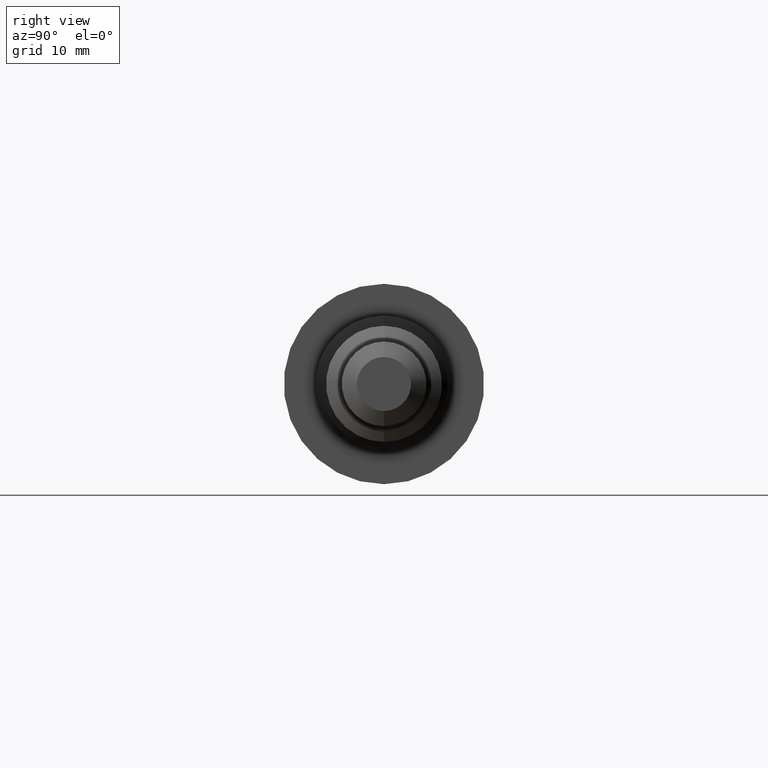
[diagram: clean part render]
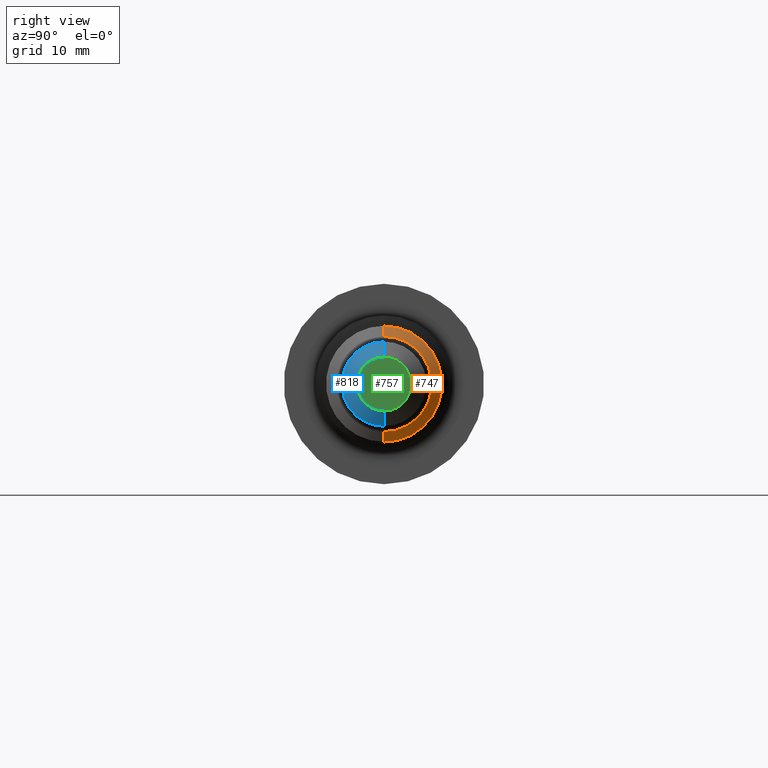
[diagram: same view with three faces highlighted in distinct colors, each labeled with its STEP entity id]
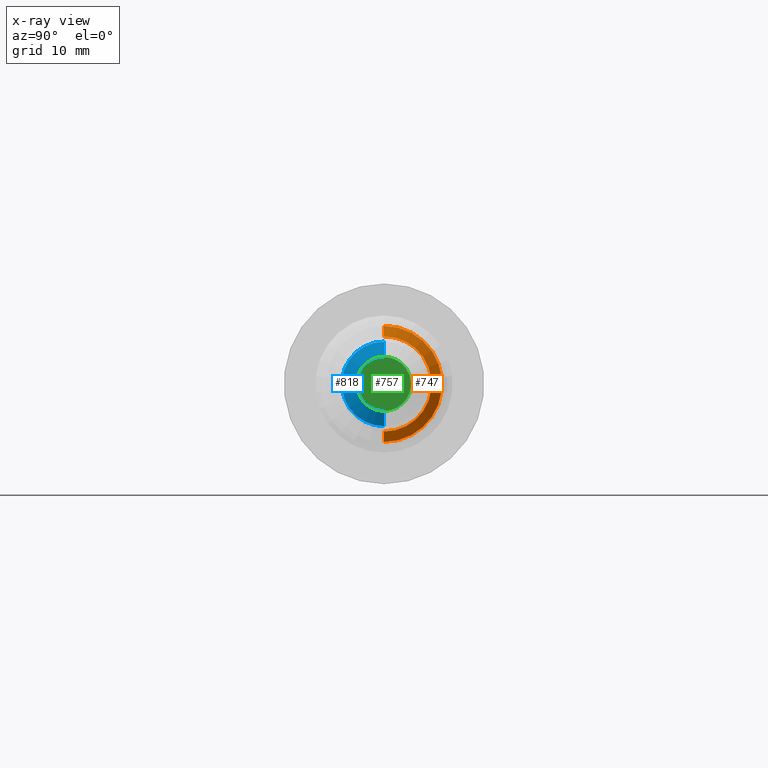
[diagram: x-ray of the same camera — body ghosted, the three highlighted faces saturated]
A machine part, right view with three faces highlighted in distinct colors.
The next image is the same camera in x-ray (body ghosted, the three faces saturated) — at least one of them is partly hidden behind the body in this view.
Their STEP definitions:

[orange] entity #747 — the highlighted conical surface has half-angle 61 deg.
#5 = LINE ( 'NONE', #744, #684 ) ;
#49 = EDGE_LOOP ( 'NONE', ( #150, #789, #694, #274 ) ) ;
#85 = FACE_OUTER_BOUND ( 'NONE', #49, .T. ) ;
#134 = DIRECTION ( 'NONE',  ( 0.0000000000000000000, 0.0000000000000000000, 1.000000000000000000 ) ) ;
#150 = ORIENTED_EDGE ( 'NONE', *, *, #334, .T. ) ;
#169 = DIRECTION ( 'NONE',  ( -1.000000000000000000, -0.0000000000000000000, -0.0000000000000000000 ) ) ;
#190 = AXIS2_PLACEMENT_3D ( 'NONE', #546, #788, #281 ) ;
#200 = CIRCLE ( 'NONE', #725, 0.2823418035447272101 ) ;
#210 = LINE ( 'NONE', #372, #537 ) ;
#263 = CARTESIAN_POINT ( 'NONE',  ( 3.512000000000000011, 0.0000000000000000000, 0.3440000000000000280 ) ) ;
#274 = ORIENTED_EDGE ( 'NONE', *, *, #555, .F. ) ;
#281 = DIRECTION ( 'NONE',  ( 0.0000000000000000000, 0.0000000000000000000, 1.000000000000000000 ) ) ;
#291 = DIRECTION ( 'NONE',  ( 0.0000000000000000000, 0.0000000000000000000, 1.000000000000000000 ) ) ;
#304 = DIRECTION ( 'NONE',  ( -0.4848096202463353377, 0.0000000000000000000, 0.8746197071393967404 ) ) ;
#334 = EDGE_CURVE ( 'NONE', #637, #483, #200, .T. ) ;
#339 = CARTESIAN_POINT ( 'NONE',  ( 3.546177696391410894, 3.835237424416152183E-17, -0.2823418035447272101 ) ) ;
#372 = CARTESIAN_POINT ( 'NONE',  ( 3.546177696391410894, 3.457689859765410033E-17, -0.2823418035447272101 ) ) ;
#422 = VERTEX_POINT ( 'NONE', #263 ) ;
#430 = DIRECTION ( 'NONE',  ( -1.000000000000000000, -0.0000000000000000000, -0.0000000000000000000 ) ) ;
#448 = CARTESIAN_POINT ( 'NONE',  ( 3.546177696391410894, 0.0000000000000000000, 0.0000000000000000000 ) ) ;
#483 = VERTEX_POINT ( 'NONE', #339 ) ;
#535 = EDGE_CURVE ( 'NONE', #483, #707, #210, .T. ) ;
#537 = VECTOR ( 'NONE', #806, 39.37007874015748143 ) ;
#546 = CARTESIAN_POINT ( 'NONE',  ( 3.546177696391410894, 0.0000000000000000000, 0.0000000000000000000 ) ) ;
#555 = EDGE_CURVE ( 'NONE', #637, #422, #5, .T. ) ;
#618 = AXIS2_PLACEMENT_3D ( 'NONE', #799, #430, #291 ) ;
#633 = EDGE_CURVE ( 'NONE', #422, #707, #781, .T. ) ;
#636 = CONICAL_SURFACE ( 'NONE', #190, 0.2823418035447272101, 1.064650843716542949 ) ;
#637 = VERTEX_POINT ( 'NONE', #741 ) ;
#684 = VECTOR ( 'NONE', #304, 39.37007874015748143 ) ;
#694 = ORIENTED_EDGE ( 'NONE', *, *, #633, .F. ) ;
#707 = VERTEX_POINT ( 'NONE', #731 ) ;
#725 = AXIS2_PLACEMENT_3D ( 'NONE', #448, #169, #134 ) ;
#731 = CARTESIAN_POINT ( 'NONE',  ( 3.512000000000000011, 4.212784989066894949E-17, -0.3440000000000000280 ) ) ;
#741 = CARTESIAN_POINT ( 'NONE',  ( 3.546177696391410894, 0.0000000000000000000, 0.2823418035447272101 ) ) ;
#744 = CARTESIAN_POINT ( 'NONE',  ( 3.546177696391410894, 0.0000000000000000000, 0.2823418035447272101 ) ) ;
#747 = ADVANCED_FACE ( 'NONE', ( #85 ), #636, .T. ) ;
#781 = CIRCLE ( 'NONE', #618, 0.3440000000000000280 ) ;
#788 = DIRECTION ( 'NONE',  ( -1.000000000000000000, -0.0000000000000000000, -0.0000000000000000000 ) ) ;
#789 = ORIENTED_EDGE ( 'NONE', *, *, #535, .T. ) ;
#799 = CARTESIAN_POINT ( 'NONE',  ( 3.512000000000000011, 0.0000000000000000000, 0.0000000000000000000 ) ) ;
#806 = DIRECTION ( 'NONE',  ( -0.4848096202463353377, 1.071100224819457718E-16, -0.8746197071393967404 ) ) ;

[blue] entity #818 — the highlighted conical surface has half-angle 61 deg.
#7 = AXIS2_PLACEMENT_3D ( 'NONE', #216, #18, #149 ) ;
#13 = VERTEX_POINT ( 'NONE', #341 ) ;
#14 = CARTESIAN_POINT ( 'NONE',  ( 4.000000000000000000, 0.0000000000000000000, 0.0000000000000000000 ) ) ;
#18 = DIRECTION ( 'NONE',  ( -1.000000000000000000, -0.0000000000000000000, -0.0000000000000000000 ) ) ;
#33 = VECTOR ( 'NONE', #486, 39.37007874015748143 ) ;
#44 = ORIENTED_EDGE ( 'NONE', *, *, #722, .T. ) ;
#74 = CONICAL_SURFACE ( 'NONE', #542, 0.1601976122364287547, 1.064650843716543616 ) ;
#87 = CARTESIAN_POINT ( 'NONE',  ( 4.000000000000000000, 0.0000000000000000000, 0.0000000000000000000 ) ) ;
#116 = ORIENTED_EDGE ( 'NONE', *, *, #715, .F. ) ;
#128 = CARTESIAN_POINT ( 'NONE',  ( 4.000000000000000000, 1.961854930563913181E-17, -0.1601976122364287547 ) ) ;
#149 = DIRECTION ( 'NONE',  ( 0.0000000000000000000, 0.0000000000000000000, 1.000000000000000000 ) ) ;
#157 = DIRECTION ( 'NONE',  ( 0.0000000000000000000, 0.0000000000000000000, 1.000000000000000000 ) ) ;
#162 = VERTEX_POINT ( 'NONE', #197 ) ;
#168 = VECTOR ( 'NONE', #551, 39.37007874015748143 ) ;
#176 = LINE ( 'NONE', #669, #168 ) ;
#197 = CARTESIAN_POINT ( 'NONE',  ( 3.950000000000000178, 0.0000000000000000000, 0.2504000000000000115 ) ) ;
#209 = VERTEX_POINT ( 'NONE', #517 ) ;
#216 = CARTESIAN_POINT ( 'NONE',  ( 3.950000000000000178, 0.0000000000000000000, 0.0000000000000000000 ) ) ;
#222 = DIRECTION ( 'NONE',  ( -1.000000000000000000, -0.0000000000000000000, -0.0000000000000000000 ) ) ;
#233 = AXIS2_PLACEMENT_3D ( 'NONE', #14, #477, #608 ) ;
#300 = ORIENTED_EDGE ( 'NONE', *, *, #521, .F. ) ;
#341 = CARTESIAN_POINT ( 'NONE',  ( 3.950000000000000178, 3.066515585064972173E-17, -0.2504000000000000115 ) ) ;
#375 = VERTEX_POINT ( 'NONE', #450 ) ;
#450 = CARTESIAN_POINT ( 'NONE',  ( 4.000000000000000000, 2.514185257814443140E-17, -0.1601976122364287547 ) ) ;
#477 = DIRECTION ( 'NONE',  ( -1.000000000000000000, -0.0000000000000000000, -0.0000000000000000000 ) ) ;
#486 = DIRECTION ( 'NONE',  ( -0.4848096202463347826, 1.071100224819458088E-16, -0.8746197071393970734 ) ) ;
#517 = CARTESIAN_POINT ( 'NONE',  ( 4.000000000000000000, 0.0000000000000000000, 0.1601976122364287547 ) ) ;
#521 = EDGE_CURVE ( 'NONE', #375, #13, #564, .T. ) ;
#542 = AXIS2_PLACEMENT_3D ( 'NONE', #87, #222, #157 ) ;
#551 = DIRECTION ( 'NONE',  ( -0.4848096202463347826, 0.0000000000000000000, 0.8746197071393970734 ) ) ;
#564 = LINE ( 'NONE', #128, #33 ) ;
#586 = CIRCLE ( 'NONE', #7, 0.2504000000000000115 ) ;
#608 = DIRECTION ( 'NONE',  ( 0.0000000000000000000, 0.0000000000000000000, 1.000000000000000000 ) ) ;
#648 = EDGE_LOOP ( 'NONE', ( #300, #816, #44, #116 ) ) ;
#669 = CARTESIAN_POINT ( 'NONE',  ( 4.000000000000000000, 0.0000000000000000000, 0.1601976122364287547 ) ) ;
#715 = EDGE_CURVE ( 'NONE', #13, #162, #586, .T. ) ;
#722 = EDGE_CURVE ( 'NONE', #209, #162, #176, .T. ) ;
#762 = EDGE_CURVE ( 'NONE', #375, #209, #794, .T. ) ;
#773 = FACE_OUTER_BOUND ( 'NONE', #648, .T. ) ;
#794 = CIRCLE ( 'NONE', #233, 0.1601976122364287547 ) ;
#816 = ORIENTED_EDGE ( 'NONE', *, *, #762, .T. ) ;
#818 = ADVANCED_FACE ( 'NONE', ( #773 ), #74, .T. ) ;

[green] entity #757 — the highlighted planar face has unit normal (-1, 0, -0).
#11 = DIRECTION ( 'NONE',  ( -1.000000000000000000, 0.0000000000000000000, -0.0000000000000000000 ) ) ;
#14 = CARTESIAN_POINT ( 'NONE',  ( 4.000000000000000000, 0.0000000000000000000, 0.0000000000000000000 ) ) ;
#133 = EDGE_CURVE ( 'NONE', #209, #375, #720, .T. ) ;
#135 = EDGE_LOOP ( 'NONE', ( #792, #152 ) ) ;
#152 = ORIENTED_EDGE ( 'NONE', *, *, #762, .F. ) ;
#209 = VERTEX_POINT ( 'NONE', #517 ) ;
#233 = AXIS2_PLACEMENT_3D ( 'NONE', #14, #477, #608 ) ;
#259 = DIRECTION ( 'NONE',  ( -1.000000000000000000, -0.0000000000000000000, -0.0000000000000000000 ) ) ;
#277 = CARTESIAN_POINT ( 'NONE',  ( 4.000000000000000000, 0.1601976122364287547, 0.0000000000000000000 ) ) ;
#375 = VERTEX_POINT ( 'NONE', #450 ) ;
#435 = AXIS2_PLACEMENT_3D ( 'NONE', #709, #259, #650 ) ;
#450 = CARTESIAN_POINT ( 'NONE',  ( 4.000000000000000000, 2.514185257814443140E-17, -0.1601976122364287547 ) ) ;
#474 = DIRECTION ( 'NONE',  ( -0.0000000000000000000, 0.0000000000000000000, 1.000000000000000000 ) ) ;
#477 = DIRECTION ( 'NONE',  ( -1.000000000000000000, -0.0000000000000000000, -0.0000000000000000000 ) ) ;
#517 = CARTESIAN_POINT ( 'NONE',  ( 4.000000000000000000, 0.0000000000000000000, 0.1601976122364287547 ) ) ;
#608 = DIRECTION ( 'NONE',  ( 0.0000000000000000000, 0.0000000000000000000, 1.000000000000000000 ) ) ;
#650 = DIRECTION ( 'NONE',  ( 0.0000000000000000000, 0.0000000000000000000, 1.000000000000000000 ) ) ;
#656 = FACE_OUTER_BOUND ( 'NONE', #135, .T. ) ;
#709 = CARTESIAN_POINT ( 'NONE',  ( 4.000000000000000000, 0.0000000000000000000, 0.0000000000000000000 ) ) ;
#720 = CIRCLE ( 'NONE', #435, 0.1601976122364287547 ) ;
#757 = ADVANCED_FACE ( 'NONE', ( #656 ), #782, .F. ) ;
#762 = EDGE_CURVE ( 'NONE', #375, #209, #794, .T. ) ;
#782 = PLANE ( 'NONE',  #801 ) ;
#792 = ORIENTED_EDGE ( 'NONE', *, *, #133, .F. ) ;
#794 = CIRCLE ( 'NONE', #233, 0.1601976122364287547 ) ;
#801 = AXIS2_PLACEMENT_3D ( 'NONE', #277, #11, #474 ) ;